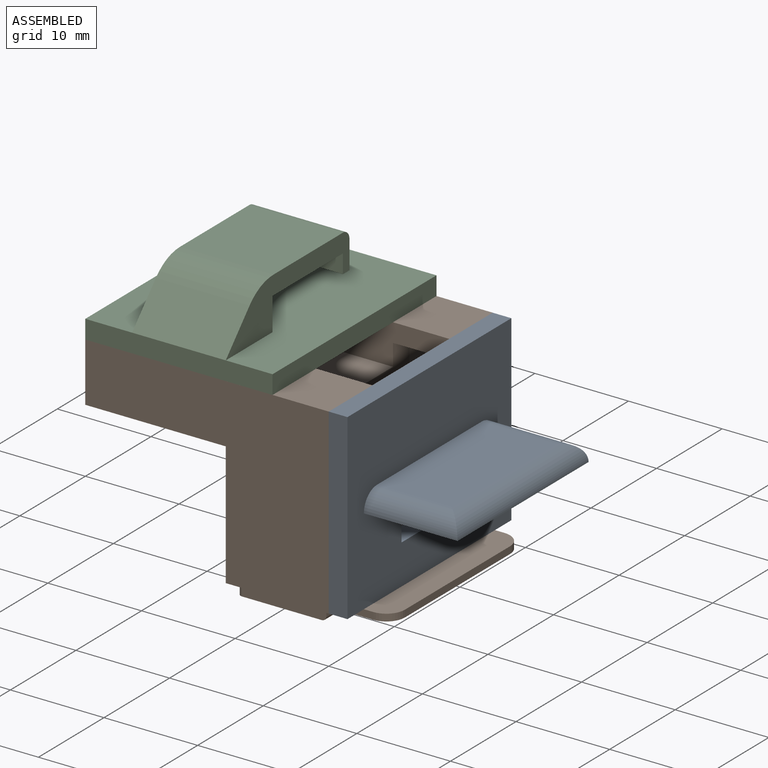
[diagram: assembled view]
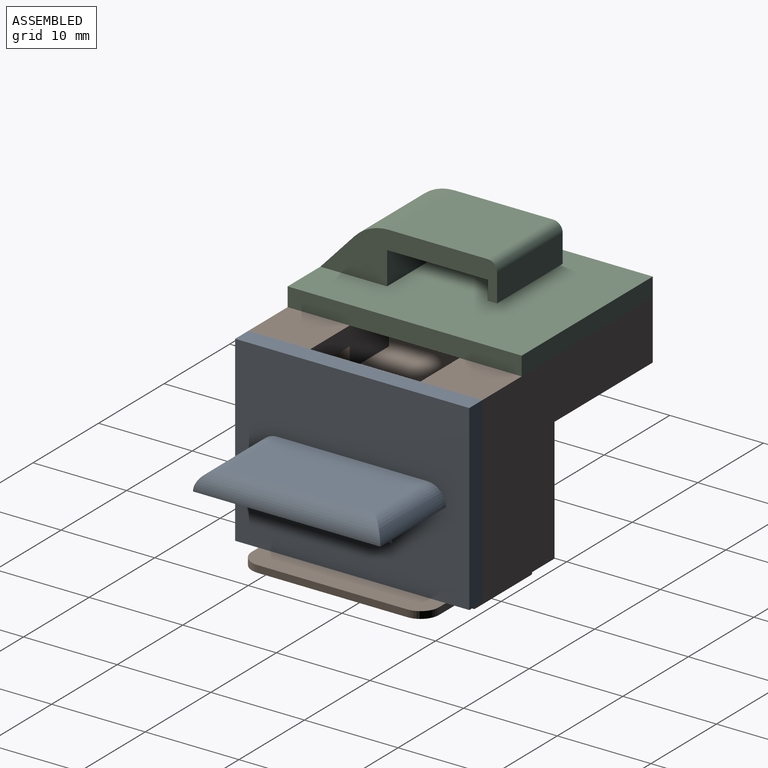
[diagram: assembled view, second angle]
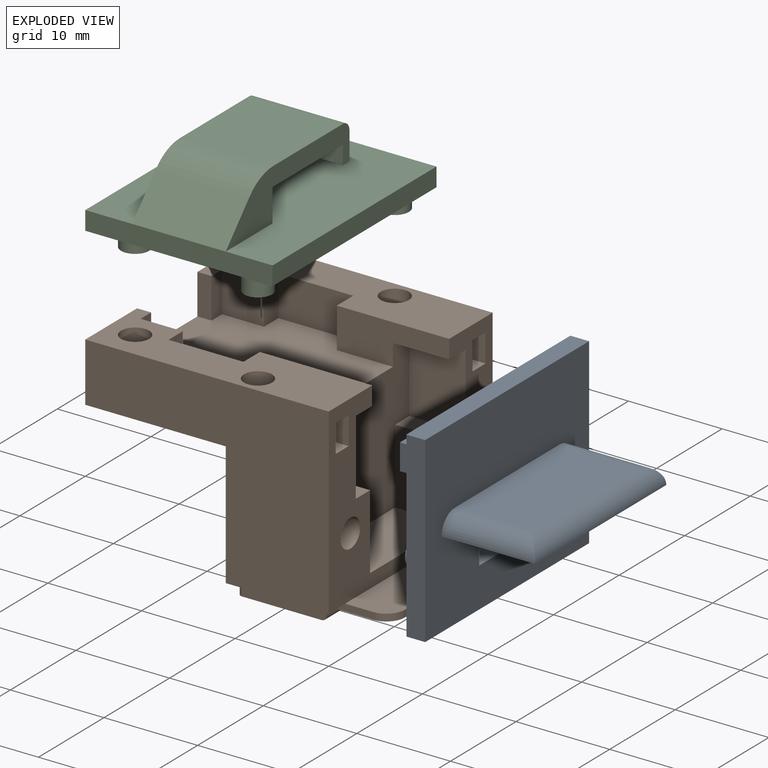
[diagram: exploded view]
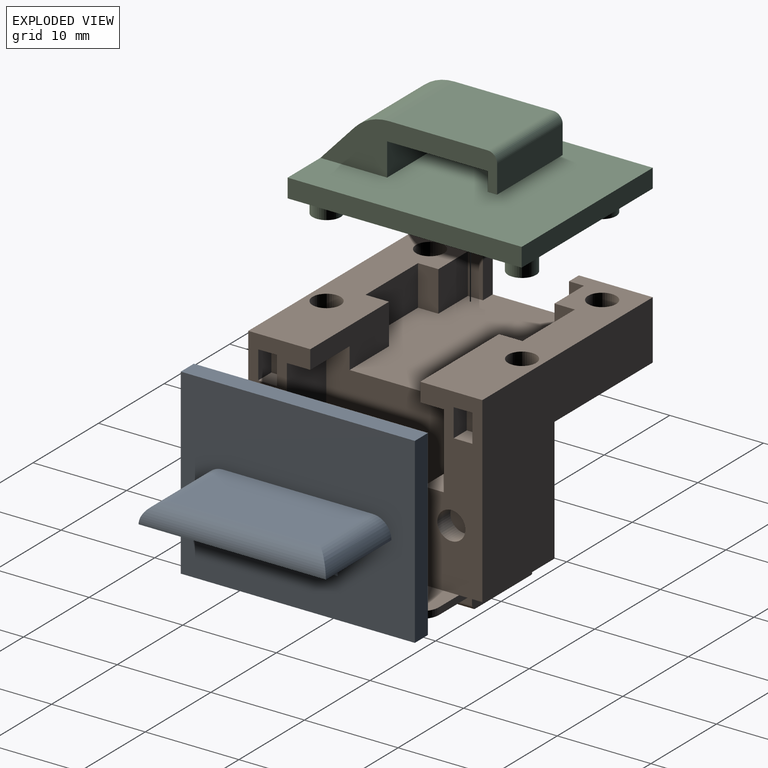
[diagram: exploded view, second angle]
ASSEMBLY  parts=3 mates=2
PART A: 29 faces, bbox 25x13.5x19.5 mm
  f0: plane 25x19.5mm, normal (0,1,0), area 443.9mm2, adj f1,f2,f3,f4,f5,f6,f7,f8
  f1: plane 25x2mm, normal (0,0,1), area 50mm2, adj f0,f2,f8,f9
  f2: plane 19.5x2mm, normal (-1,0,0), area 39mm2, adj f0,f1,f3,f9
  f3: plane 25x2mm, normal (0,0,-1), area 50mm2, adj f0,f2,f8,f9
  f4: plane 2.5x2mm, normal (1,0,0), area 5mm2, adj f0,f5,f7,f9
  f5: plane 8.5x2mm, normal (0,0,-1), area 17mm2, adj f0,f4,f6,f9
  f6: plane 2.5x2mm, normal (-1,0,0), area 5mm2, adj f0,f5,f7,f9
  f7: plane 8.5x2mm, normal (0,0,1), area 17mm2, adj f0,f4,f6,f9
  f8: plane 19.5x2mm, normal (1,0,0), area 39mm2, adj f0,f1,f3,f9
  f9: plane 25x19.5mm, normal (0,-1,0), area 428mm2, adj f1,f2,f3,f4,f5,f6,f7,f8
  f10: cylinder r=1.4mm len=2.8mm, axis (0,-1,0), area 13.2mm2, adj f0,f11
  f11: plane 2.8x2.8mm, normal (0,1,0), area 6.2mm2, adj f10
  f12: plane 1.8x1.5mm, normal (0,0,-1), area 2.7mm2, adj f0,f13,f15,f16
  f13: plane 2.8x1.5mm, normal (1,0,0), area 4.2mm2, adj f0,f12,f14,f16
  f14: plane 1.8x1.5mm, normal (0,0,1), area 2.7mm2, adj f0,f13,f15,f16
  f15: plane 2.8x1.5mm, normal (-1,0,0), area 4.2mm2, adj f0,f12,f14,f16
  f16: plane 2.8x1.8mm, normal (0,1,0), area 5mm2, adj f12,f13,f14,f15
  f17: cylinder r=1.4mm len=2.8mm, axis (0,-1,0), area 13.2mm2, adj f0,f18
  f18: plane 2.8x2.8mm, normal (0,1,0), area 6.2mm2, adj f17
  f19: plane 2.8x1.5mm, normal (-1,0,0), area 4.2mm2, adj f0,f20,f22,f23
  f20: plane 1.8x1.5mm, normal (0,0,-1), area 2.7mm2, adj f0,f19,f21,f23
  f21: plane 2.8x1.5mm, normal (1,0,0), area 4.2mm2, adj f0,f20,f22,f23
  f22: plane 1.8x1.5mm, normal (0,0,1), area 2.7mm2, adj f0,f19,f21,f23
  f23: plane 2.8x1.8mm, normal (0,1,0), area 5mm2, adj f19,f20,f21,f22
  f24: plane 20x10mm, normal (0,0,-1), area 200mm2, adj f9,f26,f27,f28
  f25: plane 16x8mm, normal (0,0,1), area 128mm2, adj f9,f26,f27,f28
  f26: cylinder r=2mm len=10mm, axis (0,1,0), area 29.1mm2, adj f9,f24,f25,f27
  f27: cylinder r=2mm len=20mm, axis (1,0,0), area 58.3mm2, adj f24,f25,f26,f28
  f28: cylinder r=2mm len=10mm, axis (0,1,0), area 29.1mm2, adj f9,f24,f25,f27
PART B: 100 faces, bbox 31x25x23.8 mm
  f0: plane 20x5mm, normal (0,0,1), area 98.3mm2, adj f17,f22,f23,f24,f25,f94
  f1: plane 12x4.3mm, normal (0,-1,0), area 37.8mm2, adj f11,f60,f73,f83,f94,f99
  f2: plane 4.3x2.5mm, normal (-1,0,0), area 10.7mm2, adj f66,f67,f70,f73
  f3: plane 4.3x2.18mm, normal (1,0,0), area 9.4mm2, adj f4,f67,f70,f73
  f4: plane 4.5x4.3mm, normal (0,1,0), area 19.3mm2, adj f3,f5,f67,f73
  f5: plane 4.3x1.6mm, normal (1,0,0), area 6.9mm2, adj f4,f6,f67,f73
  f6: plane 4.3x1.5mm, normal (0,1,0), area 6.4mm2, adj f5,f67,f71,f73
  f7: plane 4.3x1.5mm, normal (0,-1,0), area 6.4mm2, adj f8,f60,f71,f73
  f8: plane 4.3x1.6mm, normal (1,0,0), area 6.9mm2, adj f7,f9,f60,f73
  f9: plane 4.5x4.3mm, normal (0,-1,0), area 19.3mm2, adj f8,f10,f60,f73
  f10: plane 4.3x2.18mm, normal (1,0,0), area 9.4mm2, adj f9,f60,f72,f73
  f11: plane 4.3x2.5mm, normal (-1,0,0), area 10.7mm2, adj f1,f60,f72,f73
  f12: plane 8x6mm, normal (0,-1,0), area 48mm2, adj f61,f83,f94,f99
  f13: plane 13.2x2.5mm, normal (-1,0,0), area 33mm2, adj f39,f57,f59,f69
  f14: plane 13.2x2.5mm, normal (-1,0,0), area 33mm2, adj f38,f58,f68,f69
  f15: plane 8x6mm, normal (0,1,0), area 48mm2, adj f65,f82,f94,f99
  f16: plane 15.45x13.5mm, normal (-1,0,0), area 140.2mm2, adj f18,f36,f37,f43,f44,f45,f46,f48
  f17: plane 14x2.25mm, normal (0,1,0), area 23.9mm2, adj f0,f18,f25,f39,f40,f41,f42,f57
  f18: plane 20x11.5mm, normal (0,0,-1), area 198.3mm2, adj f16,f17,f19,f20,f21,f22,f26,f27
  f19: plane 15.45x2mm, normal (0,1,0), area 30.9mm2, adj f18,f26,f36,f69
  f20: plane 15.45x2mm, normal (0,-1,0), area 30.9mm2, adj f18,f21,f37,f69
  f21: plane 15.45x2.25mm, normal (-1,0,0), area 34.8mm2, adj f18,f20,f38,f69
  f22: plane 14x2.25mm, normal (0,-1,0), area 23.9mm2, adj f0,f18,f23,f38,f40,f41,f42,f58
  f23: cylinder r=2mm len=2mm, axis (0,0,-1), area 2.4mm2, adj f0,f22,f24,f41
  f24: plane 16x0.75mm, normal (1,0,0), area 12mm2, adj f0,f23,f25,f41
  f25: cylinder r=2mm len=2mm, axis (0,0,-1), area 2.4mm2, adj f0,f17,f24,f41
  f26: plane 15.45x2.25mm, normal (-1,0,0), area 34.8mm2, adj f18,f19,f39,f69
  f27: plane 2x1.8mm, normal (0,-1,0), area 3.6mm2, adj f18,f31,f32,f35
  f28: plane 5.4x2mm, normal (-1,0,0), area 10.8mm2, adj f18,f31,f32,f33
  f29: plane 2x1.8mm, normal (0,1,0), area 3.6mm2, adj f18,f31,f33,f34
  f30: plane 5.4x2mm, normal (1,0,0), area 10.8mm2, adj f18,f31,f34,f35
  f31: plane 6.4x2.8mm, normal (0,0,-1), area 17.7mm2, adj f27,f28,f29,f30,f32,f33,f34,f35
  f32: cylinder r=0.5mm len=2mm, axis (0,0,-1), area 1.6mm2, adj f18,f27,f28,f31
  f33: cylinder r=0.5mm len=2mm, axis (0,0,1), area 1.6mm2, adj f18,f28,f29,f31
  f34: cylinder r=0.5mm len=2mm, axis (0,0,-1), area 1.6mm2, adj f18,f29,f30,f31
  f35: cylinder r=0.5mm len=2mm, axis (0,0,1), area 1.6mm2, adj f18,f27,f30,f31
  f36: cylinder r=0.5mm len=15.45mm, axis (0,0,-1), area 12.1mm2, adj f16,f18,f19,f69
  f37: cylinder r=0.5mm len=15.45mm, axis (0,0,1), area 12.1mm2, adj f16,f18,f20,f69
  f38: cylinder r=0.5mm len=15.45mm, axis (0,0,-1), area 12.1mm2, adj f14,f18,f21,f22,f69
  f39: cylinder r=0.5mm len=15.45mm, axis (0,0,-1), area 12.1mm2, adj f13,f17,f18,f26,f69
  f40: plane 20x1mm, normal (1,0,0), area 20mm2, adj f17,f22,f41,f42
  f41: plane 20x7mm, normal (0,0,-1), area 138.3mm2, adj f17,f22,f23,f24,f25,f40
  f42: cylinder r=0.5mm len=20mm, axis (0,1,0), area 15.7mm2, adj f17,f18,f22,f40
  f43: plane 4.75x2mm, normal (0,0,1), area 9.5mm2, adj f16,f47,f48,f51
  f44: plane 2x0.5mm, normal (0,1,0), area 1mm2, adj f16,f47,f48,f49
  f45: plane 4.75x2mm, normal (0,0,-1), area 9.5mm2, adj f16,f47,f49,f50
  f46: plane 2x0.5mm, normal (0,-1,0), area 1mm2, adj f16,f47,f50,f51
  f47: plane 5.75x1.5mm, normal (-1,0,0), area 8.4mm2, adj f43,f44,f45,f46,f48,f49,f50,f51
  f48: cylinder r=0.5mm len=2mm, axis (-1,0,0), area 1.6mm2, adj f16,f43,f44,f47
  f49: cylinder r=0.5mm len=2mm, axis (1,0,0), area 1.6mm2, adj f16,f44,f45,f47
  f50: cylinder r=0.5mm len=2mm, axis (-1,0,0), area 1.6mm2, adj f16,f45,f46,f47
  f51: cylinder r=0.5mm len=2mm, axis (1,0,0), area 1.6mm2, adj f16,f43,f46,f47
  f52: plane 5x1mm, normal (0,-1,0), area 5mm2, adj f16,f53,f55,f56
  f53: plane 12x1mm, normal (0,0,1), area 12mm2, adj f16,f52,f54,f56
  f54: plane 5x1mm, normal (0,1,0), area 5mm2, adj f16,f53,f55,f56
  f55: plane 12x1mm, normal (0,0,-1), area 12mm2, adj f16,f52,f54,f56
  f56: plane 12x5mm, normal (-1,0,0), area 60mm2, adj f52,f53,f54,f55
  f57: plane 11x2.5mm, normal (0,0,-1), area 27.5mm2, adj f13,f17,f59,f94
  f58: plane 11x2.5mm, normal (0,0,-1), area 27.5mm2, adj f14,f22,f68,f94
  f59: plane 26x19.5mm, normal (0,1,0), area 309mm2, adj f13,f57,f60,f69,f71,f94
  f60: plane 26x7.9mm, normal (0,0,1), area 138.6mm2, adj f1,f7,f8,f9,f10,f11,f59,f71
  f61: plane 6x2.18mm, normal (0,0,1), area 13mm2, adj f12,f62,f94,f99
  f62: plane 8x6mm, normal (0,-1,0), area 48mm2, adj f61,f63,f94,f99
  f63: plane 12.4x6mm, normal (0,0,1), area 74.4mm2, adj f62,f64,f94,f99
  f64: plane 8x6mm, normal (0,1,0), area 48mm2, adj f63,f65,f94,f99
  f65: plane 6x2.18mm, normal (0,0,1), area 13mm2, adj f15,f64,f94,f99
  f66: plane 12x4.3mm, normal (0,1,0), area 37.8mm2, adj f2,f67,f73,f82,f94,f99
  f67: plane 26x7.9mm, normal (0,0,1), area 138.6mm2, adj f2,f3,f4,f5,f6,f66,f68,f70
  f68: plane 26x19.5mm, normal (0,-1,0), area 309mm2, adj f14,f58,f67,f69,f71,f94
  f69: plane 25x15mm, normal (0,0,-1), area 329mm2, adj f13,f14,f16,f19,f20,f21,f26,f36
  f70: plane 8x4.3mm, normal (0,1,0), area 34.4mm2, adj f2,f3,f67,f73
  f71: plane 25x6.3mm, normal (-1,0,0), area 117.9mm2, adj f6,f7,f59,f60,f67,f68,f69,f73
  f72: plane 8x4.3mm, normal (0,-1,0), area 34.4mm2, adj f10,f11,f60,f73
  f73: plane 20x16.75mm, normal (0,0,1), area 274.1mm2, adj f1,f2,f3,f4,f5,f6,f7,f8
  f74: cylinder r=1.5mm len=3mm, axis (0,0,1), area 28.3mm2, adj f67,f75
  f75: plane 3x3mm, normal (0,0,1), area 7.1mm2, adj f74
  f76: cylinder r=1.5mm len=3mm, axis (0,0,1), area 28.3mm2, adj f67,f77
  f77: plane 3x3mm, normal (0,0,1), area 7.1mm2, adj f76
  f78: cylinder r=1.5mm len=3mm, axis (0,0,1), area 28.3mm2, adj f60,f79
  f79: plane 3x3mm, normal (0,0,1), area 7.1mm2, adj f78
  f80: cylinder r=1.5mm len=3mm, axis (0,0,1), area 28.3mm2, adj f60,f81
  f81: plane 3x3mm, normal (0,0,1), area 7.1mm2, adj f80
  f82: plane 6x2.5mm, normal (0,0,-1), area 15mm2, adj f15,f66,f94,f99
  f83: plane 6x2.5mm, normal (0,0,-1), area 15mm2, adj f1,f12,f94,f99
  f84: plane 2x2mm, normal (0,0,1), area 4mm2, adj f85,f87,f94,f96
  f85: plane 3x2mm, normal (0,-1,0), area 6mm2, adj f84,f86,f94,f96
  f86: plane 2x2mm, normal (0,0,-1), area 4mm2, adj f85,f87,f94,f96
  f87: plane 3x2mm, normal (0,1,0), area 6mm2, adj f84,f86,f94,f96
  f88: plane 3x2mm, normal (0,1,0), area 6mm2, adj f89,f91,f94,f95
  f89: plane 2x2mm, normal (0,0,1), area 4mm2, adj f88,f90,f94,f95
  f90: plane 3x2mm, normal (0,-1,0), area 6mm2, adj f89,f91,f94,f95
  f91: plane 2x2mm, normal (0,0,-1), area 4mm2, adj f88,f90,f94,f95
  f92: cylinder r=1.5mm len=3mm, axis (-1,0,0), area 18.8mm2, adj f94,f97
  f93: cylinder r=1.5mm len=3mm, axis (-1,0,0), area 18.8mm2, adj f94,f98
  f94: plane 25x19.5mm, normal (1,0,0), area 204.7mm2, adj f0,f1,f12,f15,f57,f58,f59,f60
  f95: plane 3x2mm, normal (1,0,0), area 6mm2, adj f88,f89,f90,f91
  f96: plane 3x2mm, normal (1,0,0), area 6mm2, adj f84,f85,f86,f87
  f97: plane 3x3mm, normal (1,0,0), area 7.1mm2, adj f92
  f98: plane 3x3mm, normal (1,0,0), area 7.1mm2, adj f93
  f99: plane 16.75x16mm, normal (1,0,0), area 206.2mm2, adj f1,f12,f15,f61,f62,f63,f64,f65
PART C: 25 faces, bbox 20x25x9.5 mm
  f0: plane 25x20mm, normal (0,0,1), area 428.7mm2, adj f1,f2,f3,f4,f15,f21,f22
  f1: plane 20x2mm, normal (0,1,0), area 40mm2, adj f0,f2,f4,f5
  f2: plane 25x2mm, normal (-1,0,0), area 50mm2, adj f0,f1,f3,f5
  f3: plane 20x2mm, normal (0,-1,0), area 40mm2, adj f0,f2,f4,f5,f14
  f4: plane 25x2mm, normal (1,0,0), area 50mm2, adj f0,f1,f3,f5
  f5: plane 25x20mm, normal (0,0,-1), area 471.7mm2, adj f1,f2,f3,f4,f6,f8,f10,f12
  f6: cylinder r=1.5mm len=3mm, axis (0,0,1), area 18.8mm2, adj f5,f7
  f7: plane 3x3mm, normal (0,0,-1), area 7.1mm2, adj f6
  f8: cylinder r=1.5mm len=3mm, axis (0,0,1), area 18.8mm2, adj f5,f9
  f9: plane 3x3mm, normal (0,0,-1), area 7.1mm2, adj f8
  f10: cylinder r=1.5mm len=3mm, axis (0,0,1), area 18.8mm2, adj f5,f11
  f11: plane 3x3mm, normal (0,0,-1), area 7.1mm2, adj f10
  f12: cylinder r=1.5mm len=3mm, axis (0,0,1), area 18.8mm2, adj f5,f13
  f13: plane 3x3mm, normal (0,0,-1), area 7.1mm2, adj f12
  f14: plane 10x3.91mm, normal (0,-0.73,0.68), area 53.4mm2, adj f3,f21,f22,f23
  f15: plane 10x3.5mm, normal (0,1,0), area 35mm2, adj f0,f16,f21,f22
  f16: plane 10.75x10mm, normal (0,0,-1), area 107.5mm2, adj f15,f17,f21,f22
  f17: plane 10x2mm, normal (0,-1,0), area 20mm2, adj f16,f18,f21,f22
  f18: plane 10x1mm, normal (0,0,-1), area 10mm2, adj f17,f19,f21,f22
  f19: plane 10x3mm, normal (0,1,0), area 30mm2, adj f18,f21,f22,f24
  f20: plane 10.58x10mm, normal (0,0,1), area 105.7mm2, adj f21,f22,f23,f24
  f21: plane 18.88x5.5mm, normal (-1,0,0), area 49.8mm2, adj f0,f14,f15,f16,f17,f18,f19,f20
  f22: plane 18.88x5.5mm, normal (1,0,0), area 49.8mm2, adj f0,f14,f15,f16,f17,f18,f19,f20
  f23: cylinder r=5mm len=10mm, axis (1,0,0), area 41mm2, adj f14,f20,f21,f22
  f24: cylinder r=1mm len=10mm, axis (1,0,0), area 15.7mm2, adj f19,f20,f21,f22
PLACE A rot(axis=(0,0,1),90deg) t=(0,12.5,9.75)mm
PLACE B t=(-14,5.25,-2.25)mm
PLACE C t=(-16,12.5,19.5)mm
MATE cylindrical A.f17 <-> B.f92  axis (1,0,0) through (0,21.69,6.5)mm
MATE cylindrical C.f6 <-> B.f76  axis (0,0,-1) through (-9,2.06,17.5)mm
